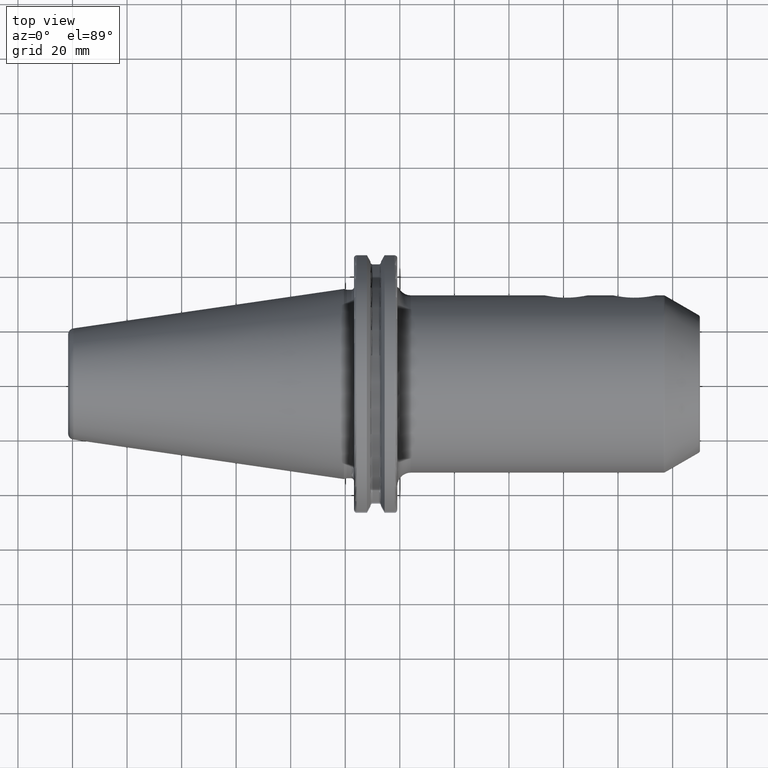
[diagram: clean part render]
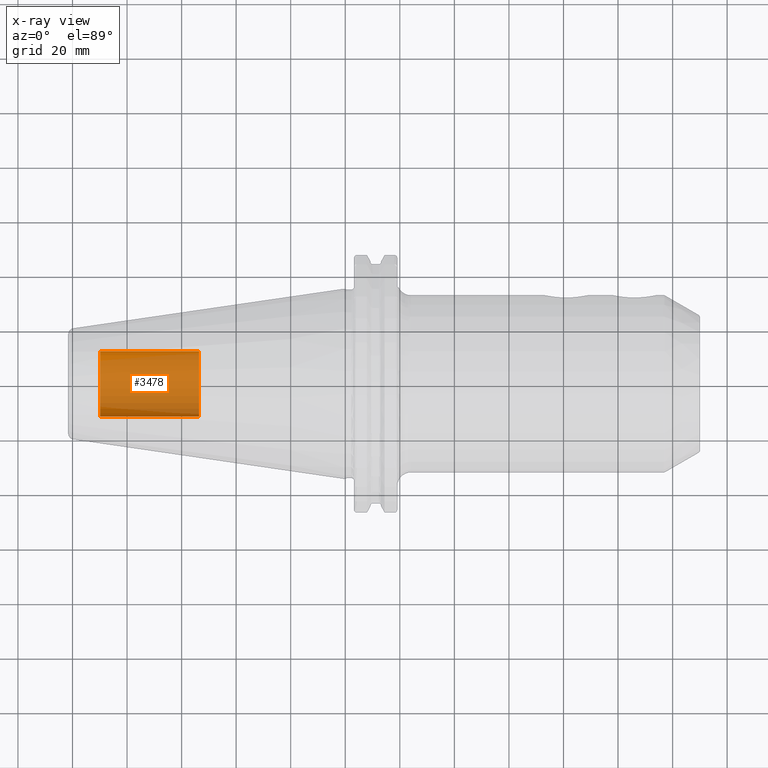
[diagram: x-ray — body ghosted, one internal face saturated and labeled with its STEP entity id]
A machine part, top view, then the same camera in x-ray: the body is ghosted and one INTERNAL B-rep face — a face not visible from any outside direction — is saturated and labeled: STEP entity #3478.
In plain terms, the highlighted cylindrical surface (edge-blend (fillet) strip) has radius 12.0032 mm, axis along (1, 0, 0).
Its self-contained STEP definition (entity closure, byte-faithful):
#3413=CARTESIAN_POINT('',(-8.985E1,0.E0,0.E0));
#3414=DIRECTION('',(-1.E0,0.E0,0.E0));
#3415=DIRECTION('',(0.E0,1.E0,0.E0));
#3416=AXIS2_PLACEMENT_3D('',#3413,#3414,#3415);
#3418=DIRECTION('',(1.E0,0.E0,0.E0));
#3419=VECTOR('',#3418,3.625E1);
#3420=CARTESIAN_POINT('',(-8.985E1,-1.200325E1,0.E0));
#3421=LINE('',#3420,#3419);
#3427=DIRECTION('',(1.E0,0.E0,0.E0));
#3428=VECTOR('',#3427,3.625E1);
#3429=CARTESIAN_POINT('',(-8.985E1,1.200325E1,0.E0));
#3430=LINE('',#3429,#3428);
#3436=CARTESIAN_POINT('',(-5.36E1,0.E0,0.E0));
#3437=DIRECTION('',(1.E0,0.E0,0.E0));
#3438=DIRECTION('',(0.E0,-1.E0,0.E0));
#3439=AXIS2_PLACEMENT_3D('',#3436,#3437,#3438);
#3451=CARTESIAN_POINT('',(-8.985E1,1.200325E1,0.E0));
#3452=CARTESIAN_POINT('',(-8.985E1,-1.200325E1,0.E0));
#3453=VERTEX_POINT('',#3451);
#3454=VERTEX_POINT('',#3452);
#3455=CARTESIAN_POINT('',(-5.36E1,1.200325E1,0.E0));
#3456=CARTESIAN_POINT('',(-5.36E1,-1.200325E1,0.E0));
#3457=VERTEX_POINT('',#3455);
#3458=VERTEX_POINT('',#3456);
#3463=CARTESIAN_POINT('',(-8.985E1,0.E0,0.E0));
#3464=DIRECTION('',(1.E0,0.E0,0.E0));
#3465=DIRECTION('',(0.E0,1.E0,0.E0));
#3466=AXIS2_PLACEMENT_3D('',#3463,#3464,#3465);
#3467=CYLINDRICAL_SURFACE('',#3466,1.200325E1);
#3469=ORIENTED_EDGE('',*,*,#3468,.T.);
#3471=ORIENTED_EDGE('',*,*,#3470,.T.);
#3473=ORIENTED_EDGE('',*,*,#3472,.T.);
#3475=ORIENTED_EDGE('',*,*,#3474,.F.);
#3476=EDGE_LOOP('',(#3469,#3471,#3473,#3475));
#3477=FACE_OUTER_BOUND('',#3476,.F.);
#3478=ADVANCED_FACE('',(#3477),#3467,.T.);
#3417=CIRCLE('',#3416,1.200325E1);
#3440=CIRCLE('',#3439,1.200325E1);
#3468=EDGE_CURVE('',#3453,#3454,#3417,.T.);
#3470=EDGE_CURVE('',#3454,#3458,#3421,.T.);
#3472=EDGE_CURVE('',#3458,#3457,#3440,.T.);
#3474=EDGE_CURVE('',#3453,#3457,#3430,.T.);